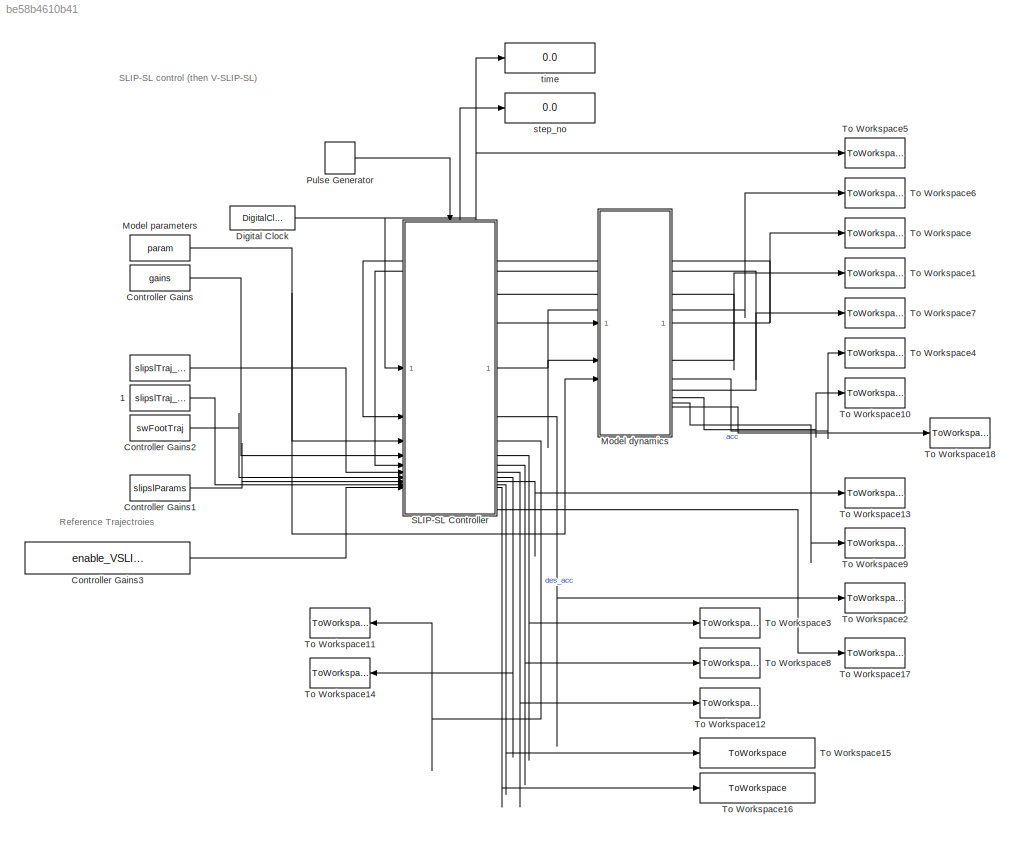
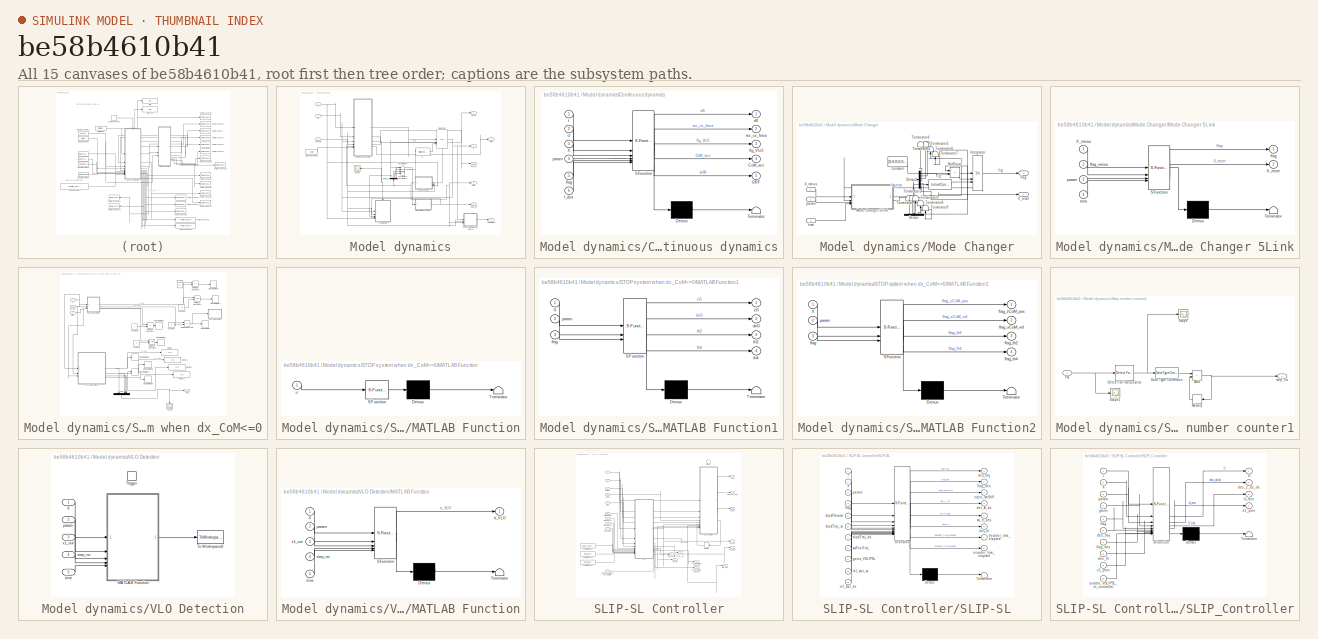
[diagram: thumbnail index - all 15 canvases of the model, root first then tree order]
MODEL slx_be58b4610b41
KIND model
CONFIG AbsTol = 1e-8
CONFIG EnableMultiTasking = off
CONFIG FixedStep = 1e-5
CONFIG MaxStep = 1e-3
CONFIG MinStep = auto
CONFIG RelTol = 1e-12
CONFIG SampleTimeConstraint = Unconstrained
CONFIG SolverName = FixedStepAuto
CONFIG StartTime = 0.0
CONFIG StopTime = Tf
BLOCK [Constant]  
  Value = slipslTraj_ss
BLOCK [Constant]  1
  Value = slipslTraj_ds
BLOCK [Constant] Controller Gains
  Value = gains
BLOCK [Constant] Controller Gains1
  Value = slipslParams
BLOCK [Constant] Controller Gains2
  Value = swFootTraj
BLOCK [Constant] Controller Gains3
  Value = enable_VSLIPSL_in_controller
BLOCK [DigitalClock] Digital Clock
  SampleTime = 1e-4
BLOCK [SubSystem] Model dynamics
BLOCK [Outport] Model dynamics/CoM_acc
  Port = 5
  VectorParamsAs1DForOutWhenUnconnected = off
BLOCK [SubSystem] Model dynamics/Continuous dynamics
  ErrorFcn = Stateflow.Translate.translate
  PermitHierarchicalResolution = ExplicitOnly
  SFBlockType = MATLAB Function
  TreatAsAtomicUnit = on
BLOCK [Demux] Model dynamics/Continuous dynamics/ Demux 
  Outputs = 1
BLOCK [S-Function] Model dynamics/Continuous dynamics/ SFunction 
  EnableBusSupport = on
  FunctionName = sf_sfun
  PortCounts = [6 6]
  SFcnIsStateOwnerBlock = off
  SFunctionDeploymentMode = off
  Tag = Stateflow S-Function 2
BLOCK [Terminator] Model dynamics/Continuous dynamics/ Terminator 
BLOCK [Outport] Model dynamics/Continuous dynamics/CoM_acc
  Port = 4
BLOCK [Outport] Model dynamics/Continuous dynamics/GRF
  Port = 5
BLOCK [Inport] Model dynamics/Continuous dynamics/U
  Port = 2
BLOCK [Inport] Model dynamics/Continuous dynamics/X
  Port = 3
BLOCK [Outport] Model dynamics/Continuous dynamics/dX
  VectorParamsAs1DForOutWhenUnconnected = off
BLOCK [Inport] Model dynamics/Continuous dynamics/f_dist
  Port = 6
BLOCK [Inport] Model dynamics/Continuous dynamics/flag
  Port = 5
BLOCK [Outport] Model dynamics/Continuous dynamics/flg_VLO
  Port = 3
  VectorParamsAs1DForOutWhenUnconnected = off
BLOCK [Inport] Model dynamics/Continuous dynamics/param
  Port = 4
BLOCK [Outport] Model dynamics/Continuous dynamics/rec_cs_force
  Port = 2
BLOCK [Inport] Model dynamics/Continuous dynamics/t
BLOCK [Demux] Model dynamics/Demux1
  NameLocation = right
  Outputs = 6
BLOCK [Constant] Model dynamics/Disturbance Flag
  Value = f_dist
BLOCK [Outport] Model dynamics/Force
  Port = 3
  VectorParamsAs1DForOutWhenUnconnected = off
BLOCK [Outport] Model dynamics/GRF
  Port = 7
BLOCK [InitialCondition] Model dynamics/IC
  Value = Initial_state
BLOCK [Integrator] Model dynamics/Integrator
  ExternalReset = falling
  InitialConditionSource = external
  NameLocation = top
  ShowStatePort = on
BLOCK [SubSystem] Model dynamics/Mode Changer
  NameLocation = top
BLOCK [Constant] Model dynamics/Mode Changer/Constant
  Value = [0;0;0;0;0;0]
BLOCK [Demux] Model dynamics/Mode Changer/Demux
  NameLocation = right
  Outputs = 6
BLOCK [Demux] Model dynamics/Mode Changer/Demux1
  Outputs = 6
BLOCK [InitialCondition] Model dynamics/Mode Changer/IC
  Value = init_flag
BLOCK [Integrator] Model dynamics/Mode Changer/Integrator
  ExternalReset = rising
  InitialConditionSource = external
  NameLocation = top
  ShowStatePort = on
BLOCK [SubSystem] Model dynamics/Mode Changer/Mode Changer 5Link
  ErrorFcn = Stateflow.Translate.translate
  PermitHierarchicalResolution = ExplicitOnly
  SFBlockType = MATLAB Function
  TreatAsAtomicUnit = on
BLOCK [Demux] Model dynamics/Mode Changer/Mode Changer 5Link/ Demux 
  Outputs = 1
BLOCK [S-Function] Model dynamics/Mode Changer/Mode Changer 5Link/ SFunction 
  EnableBusSupport = on
  FunctionName = sf_sfun
  PortCounts = [4 3]
  SFcnIsStateOwnerBlock = off
  SFunctionDeploymentMode = off
  Tag = Stateflow S-Function 6
BLOCK [Terminator] Model dynamics/Mode Changer/Mode Changer 5Link/ Terminator 
BLOCK [Inport] Model dynamics/Mode Changer/Mode Changer 5Link/X_minus
BLOCK [Outport] Model dynamics/Mode Changer/Mode Changer 5Link/X_reset
  Port = 2
  VectorParamsAs1DForOutWhenUnconnected = off
BLOCK [Outport] Model dynamics/Mode Changer/Mode Changer 5Link/flag
  VectorParamsAs1DForOutWhenUnconnected = off
BLOCK [Inport] Model dynamics/Mode Changer/Mode Changer 5Link/flag_minus
  Port = 2
BLOCK [Inport] Model dynamics/Mode Changer/Mode Changer 5Link/param
  Port = 3
BLOCK [Inport] Model dynamics/Mode Changer/Mode Changer 5Link/time
  Port = 4
BLOCK [RelationalOperator] Model dynamics/Mode Changer/NotEqual
  InputSameDT = off
  Operator = ~=
  OutDataTypeStr = boolean
  RndMeth = Simplest
BLOCK [Terminator] Model dynamics/Mode Changer/Terminator
  NameLocation = right
BLOCK [Terminator] Model dynamics/Mode Changer/Terminator1
  NameLocation = right
BLOCK [Terminator] Model dynamics/Mode Changer/Terminator2
  NameLocation = right
BLOCK [Terminator] Model dynamics/Mode Changer/Terminator3
  NameLocation = right
BLOCK [Terminator] Model dynamics/Mode Changer/Terminator4
  NameLocation = right
BLOCK [Terminator] Model dynamics/Mode Changer/Terminator5
  NameLocation = right
BLOCK [Terminator] Model dynamics/Mode Changer/Terminator6
  NameLocation = right
BLOCK [Terminator] Model dynamics/Mode Changer/Terminator7
  NameLocation = right
BLOCK [Terminator] Model dynamics/Mode Changer/Terminator8
  NameLocation = right
BLOCK [Terminator] Model dynamics/Mode Changer/Terminator9
  NameLocation = right
BLOCK [Inport] Model dynamics/Mode Changer/X_minus
BLOCK [Outport] Model dynamics/Mode Changer/X_reset
  Port = 2
  VectorParamsAs1DForOutWhenUnconnected = off
BLOCK [Outport] Model dynamics/Mode Changer/flag
  VectorParamsAs1DForOutWhenUnconnected = off
BLOCK [Inport] Model dynamics/Mode Changer/param 
  Port = 2
BLOCK [Inport] Model dynamics/Mode Changer/time
  Port = 3
BLOCK [SubSystem] Model dynamics/STOP system when dx_CoM<=0
BLOCK [Constant] Model dynamics/STOP system when dx_CoM<=0/Constant
  Commented = on
  Value = 0.3
BLOCK [Constant] Model dynamics/STOP system when dx_CoM<=0/Constant1
  Commented = on
  Value = 1.5
BLOCK [Constant] Model dynamics/STOP system when dx_CoM<=0/Constant2
  Commented = on
  Value = 0.7
BLOCK [Constant] Model dynamics/STOP system when dx_CoM<=0/Constant3
  Commented = on
  Value = 0
BLOCK [Constant] Model dynamics/STOP system when dx_CoM<=0/Constant4
  Commented = on
  Value = 0
BLOCK [Display] Model dynamics/STOP system when dx_CoM<=0/Display
  Decimation = 1
BLOCK [Display] Model dynamics/STOP system when dx_CoM<=0/Display1
  Decimation = 1
BLOCK [Display] Model dynamics/STOP system when dx_CoM<=0/Display2
  Decimation = 1
BLOCK [Display] Model dynamics/STOP system when dx_CoM<=0/Display3
  Decimation = 1
BLOCK [SubSystem] Model dynamics/STOP system when dx_CoM<=0/MATLAB Function
  Commented = on
  ErrorFcn = Stateflow.Translate.translate
  PermitHierarchicalResolution = ExplicitOnly
  SFBlockType = MATLAB Function
  TreatAsAtomicUnit = on
BLOCK [Demux] Model dynamics/STOP system when dx_CoM<=0/MATLAB Function/ Demux 
  Outputs = 1
BLOCK [S-Function] Model dynamics/STOP system when dx_CoM<=0/MATLAB Function/ SFunction 
  EnableBusSupport = on
  FunctionName = sf_sfun
  PortCounts = [1 1]
  SFcnIsStateOwnerBlock = off
  SFunctionDeploymentMode = off
  Tag = Stateflow S-Function 1
BLOCK [Terminator] Model dynamics/STOP system when dx_CoM<=0/MATLAB Function/ Terminator 
BLOCK [Inport] Model dynamics/STOP system when dx_CoM<=0/MATLAB Function/u
BLOCK [SubSystem] Model dynamics/STOP system when dx_CoM<=0/MATLAB Function1
  Commented = on
  ErrorFcn = Stateflow.Translate.translate
  PermitHierarchicalResolution = ExplicitOnly
  SFBlockType = MATLAB Function
  TreatAsAtomicUnit = on
BLOCK [Demux] Model dynamics/STOP system when dx_CoM<=0/MATLAB Function1/ Demux 
  Outputs = 1
BLOCK [S-Function] Model dynamics/STOP system when dx_CoM<=0/MATLAB Function1/ SFunction 
  EnableBusSupport = on
  FunctionName = sf_sfun
  PortCounts = [3 5]
  SFcnIsStateOwnerBlock = off
  SFunctionDeploymentMode = off
  Tag = Stateflow S-Function 3
BLOCK [Terminator] Model dynamics/STOP system when dx_CoM<=0/MATLAB Function1/ Terminator 
BLOCK [Inport] Model dynamics/STOP system when dx_CoM<=0/MATLAB Function1/X
BLOCK [Outport] Model dynamics/STOP system when dx_CoM<=0/MATLAB Function1/dxG
  Port = 2
BLOCK [Inport] Model dynamics/STOP system when dx_CoM<=0/MATLAB Function1/flag
  Port = 3
BLOCK [Inport] Model dynamics/STOP system when dx_CoM<=0/MATLAB Function1/param
  Port = 2
BLOCK [Outport] Model dynamics/STOP system when dx_CoM<=0/MATLAB Function1/th2
  Port = 3
BLOCK [Outport] Model dynamics/STOP system when dx_CoM<=0/MATLAB Function1/th4
  Port = 4
BLOCK [Outport] Model dynamics/STOP system when dx_CoM<=0/MATLAB Function1/zG
BLOCK [SubSystem] Model dynamics/STOP system when dx_CoM<=0/MATLAB Function2
  ErrorFcn = Stateflow.Translate.translate
  PermitHierarchicalResolution = ExplicitOnly
  SFBlockType = MATLAB Function
  TreatAsAtomicUnit = on
BLOCK [Demux] Model dynamics/STOP system when dx_CoM<=0/MATLAB Function2/ Demux 
  Outputs = 1
BLOCK [S-Function] Model dynamics/STOP system when dx_CoM<=0/MATLAB Function2/ SFunction 
  EnableBusSupport = on
  FunctionName = sf_sfun
  PortCounts = [3 5]
  SFcnIsStateOwnerBlock = off
  SFunctionDeploymentMode = off
  Tag = Stateflow S-Function 7
BLOCK [Terminator] Model dynamics/STOP system when dx_CoM<=0/MATLAB Function2/ Terminator 
BLOCK [Inport] Model dynamics/STOP system when dx_CoM<=0/MATLAB Function2/X
BLOCK [Inport] Model dynamics/STOP system when dx_CoM<=0/MATLAB Function2/flag
  Port = 3
BLOCK [Outport] Model dynamics/STOP system when dx_CoM<=0/MATLAB Function2/flag_th2
  Port = 3
BLOCK [Outport] Model dynamics/STOP system when dx_CoM<=0/MATLAB Function2/flag_th4
  Port = 4
BLOCK [Outport] Model dynamics/STOP system when dx_CoM<=0/MATLAB Function2/flag_xCoM_vel
  Port = 2
BLOCK [Outport] Model dynamics/STOP system when dx_CoM<=0/MATLAB Function2/flag_zCoM_pos
BLOCK [Inport] Model dynamics/STOP system when dx_CoM<=0/MATLAB Function2/param
  Port = 2
BLOCK [Mux] Model dynamics/STOP system when dx_CoM<=0/Mux
  DisplayOption = bar
  NameLocation = left
BLOCK [Outport] Model dynamics/STOP system when dx_CoM<=0/Out1
BLOCK [RelationalOperator] Model dynamics/STOP system when dx_CoM<=0/Relational Operator
  Commented = on
  InputSameDT = off
  Operator = <=
  OutDataTypeStr = boolean
  RndMeth = Simplest
BLOCK [RelationalOperator] Model dynamics/STOP system when dx_CoM<=0/Relational Operator1
  Commented = on
  InputSameDT = off
  OutDataTypeStr = boolean
  RndMeth = Simplest
BLOCK [RelationalOperator] Model dynamics/STOP system when dx_CoM<=0/Relational Operator2
  Commented = on
  InputSameDT = off
  Operator = <=
  OutDataTypeStr = boolean
  RndMeth = Simplest
BLOCK [RelationalOperator] Model dynamics/STOP system when dx_CoM<=0/Relational Operator3
  Commented = on
  InputSameDT = off
  Operator = <=
  OutDataTypeStr = boolean
  RndMeth = Simplest
BLOCK [RelationalOperator] Model dynamics/STOP system when dx_CoM<=0/Relational Operator4
  Commented = on
  InputSameDT = off
  OutDataTypeStr = boolean
  RndMeth = Simplest
BLOCK [Scope] Model dynamics/STOP system when dx_CoM<=0/Scope
  Floating = off
  NameLocation = left
  NumInputPorts = 1
  ScopeSpecificationString = Simulink.scopes.TimeScopeBlockCfg('CurrentConfiguration', extmgr.ConfigurationSet(extmgr.Configuration('Core','General UI',true),extmgr.Configuration('Core','Source UI',true),extmgr.Configuration('Sources','WiredSimulink',true,'DataLoggingVariableName','ScopeData1'),extmgr.Configuration('Visuals','Time Domain',true,'SerializedDisplays',{struct('MinYLimReal','-0.125','MaxYLimReal','1.125','YLabelRe...<+1417ch>
BLOCK [Stop] Model dynamics/STOP system when dx_CoM<=0/Stop Simulation
  Commented = on
BLOCK [Stop] Model dynamics/STOP system when dx_CoM<=0/Stop Simulation1
  Commented = on
BLOCK [Stop] Model dynamics/STOP system when dx_CoM<=0/Stop Simulation2
  Commented = on
BLOCK [Stop] Model dynamics/STOP system when dx_CoM<=0/Stop Simulation3
  Commented = on
BLOCK [Stop] Model dynamics/STOP system when dx_CoM<=0/Stop Simulation4
  Commented = on
BLOCK [Stop] Model dynamics/STOP system when dx_CoM<=0/Stop Simulation5
BLOCK [Stop] Model dynamics/STOP system when dx_CoM<=0/Stop Simulation6
BLOCK [Stop] Model dynamics/STOP system when dx_CoM<=0/Stop Simulation7
BLOCK [Stop] Model dynamics/STOP system when dx_CoM<=0/Stop Simulation8
BLOCK [Inport] Model dynamics/STOP system when dx_CoM<=0/X
BLOCK [Inport] Model dynamics/STOP system when dx_CoM<=0/flag
  Port = 3
BLOCK [Inport] Model dynamics/STOP system when dx_CoM<=0/param
  Port = 2
BLOCK [Scope] Model dynamics/Scope
  Floating = off
  NameLocation = top
  NumInputPorts = 1
  ScopeSpecificationString = Simulink.scopes.TimeScopeBlockCfg('CurrentConfiguration', extmgr.ConfigurationSet(extmgr.Configuration('Core','General UI',true),extmgr.Configuration('Core','Source UI',true),extmgr.Configuration('Sources','WiredSimulink',true,'DataLoggingVariableName','ScopeData1'),extmgr.Configuration('Visuals','Time Domain',true,'SerializedDisplays',{struct('MinYLimReal','-0.125','MaxYLimReal','1.125','YLabelRe...<+1374ch>
BLOCK [SubSystem] Model dynamics/Step number counter1
BLOCK [Sum] Model dynamics/Step number counter1/Add
  IconShape = rectangular
BLOCK [DataTypeConversion] Model dynamics/Step number counter1/Data Type Conversion
  OutDataTypeStr = double
  RndMeth = Floor
  SaturateOnIntegerOverflow = off
BLOCK [Reference] Model dynamics/Step number counter1/Detect Fall Nonpositive  REF=simulink/Logic and Bit
Operations/Detect Fall
Nonpositive
  SourceBlock = simulink/Logic and Bit\nOperations/Detect Fall\nNonpositive
  SourceType = Detect Fall Nonpositive
BLOCK [Memory] Model dynamics/Step number counter1/Memory
  InheritSampleTime = on
  NameLocation = top
BLOCK [Scope] Model dynamics/Step number counter1/Scope
  Floating = off
  NumInputPorts = 1
  ScopeSpecificationString = Simulink.scopes.TimeScopeBlockCfg('CurrentConfiguration', extmgr.ConfigurationSet(extmgr.Configuration('Core','General UI',true),extmgr.Configuration('Core','Source UI',true),extmgr.Configuration('Sources','WiredSimulink',true),extmgr.Configuration('Visuals','Time Domain',true,'SerializedDisplays',{struct('MinYLimReal','-0.02721','MaxYLimReal','1.01397','YLabelReal','','MinYLimMag','0.00000','MaxY...<+1417ch>
BLOCK [Scope] Model dynamics/Step number counter1/Scope1
  Floating = off
  NumInputPorts = 1
  ScopeSpecificationString = Simulink.scopes.TimeScopeBlockCfg('CurrentConfiguration', extmgr.ConfigurationSet(extmgr.Configuration('Core','General UI',true),extmgr.Configuration('Core','Source UI',true),extmgr.Configuration('Sources','WiredSimulink',true,'DataLoggingVariableName','ScopeData1'),extmgr.Configuration('Visuals','Time Domain',true,'SerializedDisplays',{struct('MinYLimReal','-0.125','MaxYLimReal','1.125','YLabelRe...<+1422ch>
BLOCK [Inport] Model dynamics/Step number counter1/flg
  SampleTime = sample_time
BLOCK [Outport] Model dynamics/Step number counter1/step_no
  VectorParamsAs1DForOutWhenUnconnected = off
BLOCK [Terminator] Model dynamics/Terminator1
BLOCK [Terminator] Model dynamics/Terminator2
BLOCK [Terminator] Model dynamics/Terminator3
BLOCK [Terminator] Model dynamics/Terminator4
BLOCK [Inport] Model dynamics/U
  Port = 2
BLOCK [SubSystem] Model dynamics/VLO Detection
  TreatAsAtomicUnit = on
BLOCK [SubSystem] Model dynamics/VLO Detection/MATLAB Function
  ErrorFcn = Stateflow.Translate.translate
  PermitHierarchicalResolution = ExplicitOnly
  SFBlockType = MATLAB Function
  TreatAsAtomicUnit = on
BLOCK [Demux] Model dynamics/VLO Detection/MATLAB Function/ Demux 
  Outputs = 1
BLOCK [S-Function] Model dynamics/VLO Detection/MATLAB Function/ SFunction 
  EnableBusSupport = on
  FunctionName = sf_sfun
  PortCounts = [5 2]
  SFcnIsStateOwnerBlock = off
  SFunctionDeploymentMode = off
  Tag = Stateflow S-Function 5
BLOCK [Terminator] Model dynamics/VLO Detection/MATLAB Function/ Terminator 
BLOCK [Inport] Model dynamics/VLO Detection/MATLAB Function/X
BLOCK [Inport] Model dynamics/VLO Detection/MATLAB Function/param
  Port = 2
BLOCK [Outport] Model dynamics/VLO Detection/MATLAB Function/rt_VLO
  VectorParamsAs1DForOutWhenUnconnected = off
BLOCK [Inport] Model dynamics/VLO Detection/MATLAB Function/step_no
  Port = 4
BLOCK [Inport] Model dynamics/VLO Detection/MATLAB Function/time
  Port = 5
BLOCK [Inport] Model dynamics/VLO Detection/MATLAB Function/x1_out
  Port = 3
BLOCK [ToWorkspace] Model dynamics/VLO Detection/To Workspace8
  FixptAsFi = on
  MaxDataPoints = inf
  SampleTime = -1
  VariableName = rt_VLO
BLOCK [TriggerPort] Model dynamics/VLO Detection/Trigger
  StatesWhenEnabling = held
  VariantControl = Variant
BLOCK [Inport] Model dynamics/VLO Detection/X
BLOCK [Inport] Model dynamics/VLO Detection/param
  Port = 2
BLOCK [Inport] Model dynamics/VLO Detection/step_no
  Port = 4
BLOCK [Inport] Model dynamics/VLO Detection/time
  Port = 5
BLOCK [Inport] Model dynamics/VLO Detection/x1_out
  Port = 3
BLOCK [Outport] Model dynamics/X
  VectorParamsAs1DForOutWhenUnconnected = off
BLOCK [Outport] Model dynamics/flag
  Port = 4
BLOCK [Inport] Model dynamics/params
  Port = 3
BLOCK [Outport] Model dynamics/sim stop flags
  Port = 6
BLOCK [Outport] Model dynamics/step_no
  Port = 2
  VectorParamsAs1DForOutWhenUnconnected = off
BLOCK [Inport] Model dynamics/t
BLOCK [Constant] Model parameters
  NameLocation = top
  OutDataTypeStr = double
  Value = param
BLOCK [DiscretePulseGenerator] Pulse Generator
  Period = sample_time
  PulseType = Time based
  PulseWidth = 5
BLOCK [SubSystem] SLIP-SL Controller
  TreatAsAtomicUnit = on
BLOCK [Outport] SLIP-SL Controller/CoM_acc_des
  Port = 3
  VectorParamsAs1DForOutWhenUnconnected = off
BLOCK [Constant] SLIP-SL Controller/Controller Gains1
  Value = gains_VSLIPSL
BLOCK [Constant] SLIP-SL Controller/Controller Gains2
  Value = ref_star_ss
BLOCK [Constant] SLIP-SL Controller/Controller Gains3
  Value = ref_star_ds
BLOCK [Memory] SLIP-SL Controller/Memory
  InheritSampleTime = on
  InitialCondition = [0, 0]
  NameLocation = top
BLOCK [Outport] SLIP-SL Controller/Out1
  VectorParamsAs1DForOutWhenUnconnected = off
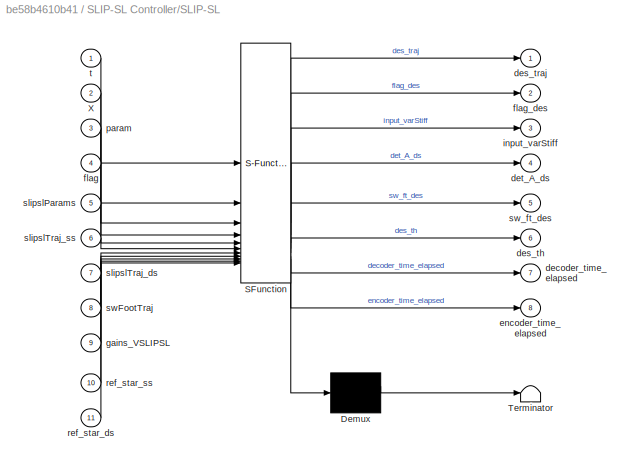
BLOCK [SubSystem] SLIP-SL Controller/SLIP-SL
  ErrorFcn = Stateflow.Translate.translate
  PermitHierarchicalResolution = ExplicitOnly
  SFBlockType = MATLAB Function
  TreatAsAtomicUnit = on
BLOCK [Demux] SLIP-SL Controller/SLIP-SL/ Demux 
  Outputs = 1
BLOCK [S-Function] SLIP-SL Controller/SLIP-SL/ SFunction 
  EnableBusSupport = on
  FunctionName = sf_sfun
  PortCounts = [11 9]
  SFcnIsStateOwnerBlock = off
  SFunctionDeploymentMode = off
  Tag = Stateflow S-Function 8
BLOCK [Terminator] SLIP-SL Controller/SLIP-SL/ Terminator 
BLOCK [Inport] SLIP-SL Controller/SLIP-SL/X
  Port = 2
BLOCK [Outport] SLIP-SL Controller/SLIP-SL/decoder_time_elapsed
  Port = 7
BLOCK [Outport] SLIP-SL Controller/SLIP-SL/des_th
  Port = 6
BLOCK [Outport] SLIP-SL Controller/SLIP-SL/des_traj
BLOCK [Outport] SLIP-SL Controller/SLIP-SL/det_A_ds
  Port = 4
BLOCK [Outport] SLIP-SL Controller/SLIP-SL/encoder_time_elapsed
  Port = 8
BLOCK [Inport] SLIP-SL Controller/SLIP-SL/flag
  Port = 4
BLOCK [Outport] SLIP-SL Controller/SLIP-SL/flag_des
  Port = 2
BLOCK [Inport] SLIP-SL Controller/SLIP-SL/gains_VSLIPSL
  Port = 9
BLOCK [Outport] SLIP-SL Controller/SLIP-SL/input_varStiff
  Port = 3
BLOCK [Inport] SLIP-SL Controller/SLIP-SL/param
  Port = 3
BLOCK [Inport] SLIP-SL Controller/SLIP-SL/ref_star_ds
  Port = 11
BLOCK [Inport] SLIP-SL Controller/SLIP-SL/ref_star_ss
  Port = 10
BLOCK [Inport] SLIP-SL Controller/SLIP-SL/slipslParams
  Port = 5
BLOCK [Inport] SLIP-SL Controller/SLIP-SL/slipslTraj_ds
  Port = 7
BLOCK [Inport] SLIP-SL Controller/SLIP-SL/slipslTraj_ss
  Port = 6
BLOCK [Inport] SLIP-SL Controller/SLIP-SL/swFootTraj
  Port = 8
BLOCK [Outport] SLIP-SL Controller/SLIP-SL/sw_ft_des
  Port = 5
BLOCK [Inport] SLIP-SL Controller/SLIP-SL/t
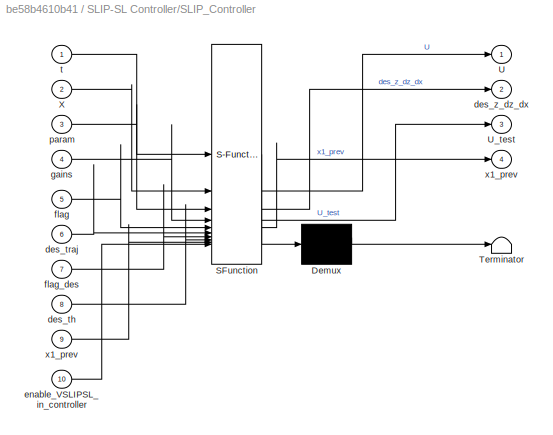
BLOCK [SubSystem] SLIP-SL Controller/SLIP_Controller
  ErrorFcn = Stateflow.Translate.translate
  PermitHierarchicalResolution = ExplicitOnly
  SFBlockType = MATLAB Function
  TreatAsAtomicUnit = on
BLOCK [Demux] SLIP-SL Controller/SLIP_Controller/ Demux 
  Outputs = 1
BLOCK [S-Function] SLIP-SL Controller/SLIP_Controller/ SFunction 
  EnableBusSupport = on
  FunctionName = sf_sfun
  PortCounts = [10 5]
  SFcnIsStateOwnerBlock = off
  SFunctionDeploymentMode = off
  Tag = Stateflow S-Function 4
BLOCK [Terminator] SLIP-SL Controller/SLIP_Controller/ Terminator 
BLOCK [Outport] SLIP-SL Controller/SLIP_Controller/U
  VectorParamsAs1DForOutWhenUnconnected = off
BLOCK [Outport] SLIP-SL Controller/SLIP_Controller/U_test
  Port = 3
BLOCK [Inport] SLIP-SL Controller/SLIP_Controller/X
  Port = 2
BLOCK [Inport] SLIP-SL Controller/SLIP_Controller/des_th
  Port = 8
BLOCK [Inport] SLIP-SL Controller/SLIP_Controller/des_traj
  Port = 6
BLOCK [Outport] SLIP-SL Controller/SLIP_Controller/des_z_dz_dx
  Port = 2
BLOCK [Inport] SLIP-SL Controller/SLIP_Controller/enable_VSLIPSL_in_controller
  Port = 10
BLOCK [Inport] SLIP-SL Controller/SLIP_Controller/flag
  Port = 5
BLOCK [Inport] SLIP-SL Controller/SLIP_Controller/flag_des
  Port = 7
BLOCK [Inport] SLIP-SL Controller/SLIP_Controller/gains
  Port = 4
BLOCK [Inport] SLIP-SL Controller/SLIP_Controller/param
  Port = 3
BLOCK [Inport] SLIP-SL Controller/SLIP_Controller/t
BLOCK [Outport] SLIP-SL Controller/SLIP_Controller/x1_prev
  Port = 4
  VectorParamsAs1DForOutWhenUnconnected = off
BLOCK [Inport] SLIP-SL Controller/SLIP_Controller/x1_prev 
  Port = 9
BLOCK [TriggerPort] SLIP-SL Controller/Trigger
  PortDimensions = 1
  StatesWhenEnabling = held
  VariantControl = Variant
BLOCK [Outport] SLIP-SL Controller/U_test
  Port = 8
  VectorParamsAs1DForOutWhenUnconnected = off
BLOCK [Inport] SLIP-SL Controller/X
  Port = 2
BLOCK [Outport] SLIP-SL Controller/decoder_time_elapsed
  Port = 9
  VectorParamsAs1DForOutWhenUnconnected = off
BLOCK [Outport] SLIP-SL Controller/des_th
  Port = 7
  VectorParamsAs1DForOutWhenUnconnected = off
BLOCK [Outport] SLIP-SL Controller/des_traj
  Port = 4
  VectorParamsAs1DForOutWhenUnconnected = off
BLOCK [Outport] SLIP-SL Controller/det_A_ds
  Port = 6
  VectorParamsAs1DForOutWhenUnconnected = off
BLOCK [Inport] SLIP-SL Controller/enable_VSLIPSL_in_controller
  Port = 10
BLOCK [Outport] SLIP-SL Controller/encoder_time_elapsed
  Port = 10
  VectorParamsAs1DForOutWhenUnconnected = off
BLOCK [Inport] SLIP-SL Controller/flag
  Port = 5
BLOCK [Outport] SLIP-SL Controller/flag_des
  Port = 11
  VectorParamsAs1DForOutWhenUnconnected = off
BLOCK [Inport] SLIP-SL Controller/gains
  Port = 4
BLOCK [Outport] SLIP-SL Controller/input_varStiff
  Port = 5
  VectorParamsAs1DForOutWhenUnconnected = off
BLOCK [Inport] SLIP-SL Controller/param
  Port = 3
BLOCK [Inport] SLIP-SL Controller/slipslParams
  Port = 8
BLOCK [Inport] SLIP-SL Controller/slipslTraj_ds
  Port = 9
BLOCK [Inport] SLIP-SL Controller/slipslTraj_ss
  Port = 6
BLOCK [Inport] SLIP-SL Controller/swFootTraj
  Port = 7
BLOCK [Outport] SLIP-SL Controller/sw_ft_des
  Port = 2
  VectorParamsAs1DForOutWhenUnconnected = off
BLOCK [Inport] SLIP-SL Controller/t
BLOCK [ToWorkspace] To Workspace
  FixptAsFi = on
  MaxDataPoints = inf
  SampleTime = sample_time
  VariableName = simout
BLOCK [ToWorkspace] To Workspace1
  FixptAsFi = on
  MaxDataPoints = inf
  SampleTime = sample_time
  VariableName = step_no
BLOCK [ToWorkspace] To Workspace10
  FixptAsFi = on
  MaxDataPoints = inf
  SampleTime = sample_time
  VariableName = CoM_acc
BLOCK [ToWorkspace] To Workspace11
  FixptAsFi = on
  MaxDataPoints = inf
  NameLocation = top
  SampleTime = sample_time
  VariableName = des_z_dz_dx
BLOCK [ToWorkspace] To Workspace12
  FixptAsFi = on
  MaxDataPoints = inf
  SampleTime = sample_time
  VariableName = det_A_ds
BLOCK [ToWorkspace] To Workspace13
  FixptAsFi = on
  MaxDataPoints = inf
  SampleTime = sample_time
  VariableName = U_test
BLOCK [ToWorkspace] To Workspace14
  FixptAsFi = on
  MaxDataPoints = inf
  NameLocation = top
  SampleTime = sample_time
  VariableName = des_th
BLOCK [ToWorkspace] To Workspace15
  FixptAsFi = on
  MaxDataPoints = inf
  SampleTime = sample_time
  VariableName = decoder_time_elapsed
BLOCK [ToWorkspace] To Workspace16
  FixptAsFi = on
  MaxDataPoints = inf
  SampleTime = sample_time
  VariableName = encoder_time_elapsed
BLOCK [ToWorkspace] To Workspace17
  FixptAsFi = on
  MaxDataPoints = inf
  SampleTime = sample_time
  VariableName = flag_des
BLOCK [ToWorkspace] To Workspace18
  FixptAsFi = on
  MaxDataPoints = inf
  SampleTime = sample_time
  VariableName = GRF_simulink
BLOCK [ToWorkspace] To Workspace2
  FixptAsFi = on
  MaxDataPoints = inf
  SampleTime = sample_time
  VariableName = sw_ft_des
BLOCK [ToWorkspace] To Workspace3
  FixptAsFi = on
  MaxDataPoints = inf
  SampleTime = sample_time
  VariableName = des_traj
BLOCK [ToWorkspace] To Workspace4
  FixptAsFi = on
  MaxDataPoints = inf
  SampleTime = sample_time
  VariableName = force
BLOCK [ToWorkspace] To Workspace5
  FixptAsFi = on
  MaxDataPoints = inf
  SampleTime = sample_time
  VariableName = time
BLOCK [ToWorkspace] To Workspace6
  FixptAsFi = on
  MaxDataPoints = inf
  SampleTime = sample_time
  VariableName = inputTorque
BLOCK [ToWorkspace] To Workspace7
  FixptAsFi = on
  MaxDataPoints = inf
  SampleTime = sample_time
  VariableName = flag
BLOCK [ToWorkspace] To Workspace8
  FixptAsFi = on
  MaxDataPoints = inf
  SampleTime = sample_time
  VariableName = input_varStiff
BLOCK [ToWorkspace] To Workspace9
  FixptAsFi = on
  MaxDataPoints = inf
  SampleTime = sample_time
  VariableName = flag_sim_stop
BLOCK [Display] step_no
  Decimation = 1
BLOCK [Display] time
  Decimation = 1
ANNOTATION (root): Reference Trajectroies
ANNOTATION (root): SLIP-SL control (then V-SLIP-SL)
LINE  1:1 -> SLIP-SL Controller:9
LINE  :1 -> SLIP-SL Controller:6
LINE Controller Gains1:1 -> SLIP-SL Controller:8
LINE Controller Gains2:1 -> SLIP-SL Controller:7
LINE Controller Gains3:1 -> SLIP-SL Controller:10
LINE Controller Gains:1 -> SLIP-SL Controller:4
NET Digital Clock:1 -> Model dynamics:1, SLIP-SL Controller:1, To Workspace5:1, time:1
LINE Model dynamics/Continuous dynamics:1 -> Model dynamics/Integrator:1
LINE Model dynamics/Continuous dynamics:2 -> Model dynamics/Force:1
NET Model dynamics/Continuous dynamics:3 -> Model dynamics/Scope:1, Model dynamics/VLO Detection:trigger
LINE Model dynamics/Continuous dynamics:4 -> Model dynamics/CoM_acc:1
LINE Model dynamics/Continuous dynamics:5 -> Model dynamics/GRF:1
NET Model dynamics/Demux1:1 -> Model dynamics/Integrator:2, Model dynamics/Step number counter1:1
LINE Model dynamics/Demux1:2 -> Model dynamics/VLO Detection:3
LINE Model dynamics/Demux1:3 -> Model dynamics/Terminator1:1
LINE Model dynamics/Demux1:4 -> Model dynamics/Terminator2:1
LINE Model dynamics/Demux1:5 -> Model dynamics/Terminator3:1
LINE Model dynamics/Demux1:6 -> Model dynamics/Terminator4:1
LINE Model dynamics/Disturbance Flag:1 -> Model dynamics/Continuous dynamics:6
LINE Model dynamics/IC:1 -> Model dynamics/Integrator:3
NET Model dynamics/Integrator:1 -> Model dynamics/Continuous dynamics:3, Model dynamics/STOP system when dx_CoM<=0:1, Model dynamics/VLO Detection:1, Model dynamics/X:1
LINE Model dynamics/Integrator:state -> Model dynamics/Mode Changer:1
LINE Model dynamics/Mode Changer/Constant:1 -> Model dynamics/Mode Changer/Integrator:1
LINE Model dynamics/Mode Changer/Demux1:1 -> Model dynamics/Mode Changer/NotEqual:2
LINE Model dynamics/Mode Changer/Demux1:2 -> Model dynamics/Mode Changer/Terminator2:1
LINE Model dynamics/Mode Changer/Demux1:3 -> Model dynamics/Mode Changer/Terminator3:1
LINE Model dynamics/Mode Changer/Demux1:4 -> Model dynamics/Mode Changer/Terminator4:1
LINE Model dynamics/Mode Changer/Demux1:5 -> Model dynamics/Mode Changer/Terminator6:1
LINE Model dynamics/Mode Changer/Demux1:6 -> Model dynamics/Mode Changer/Terminator7:1
LINE Model dynamics/Mode Changer/Demux:1 -> Model dynamics/Mode Changer/NotEqual:1
LINE Model dynamics/Mode Changer/Demux:2 -> Model dynamics/Mode Changer/Terminator:1
LINE Model dynamics/Mode Changer/Demux:3 -> Model dynamics/Mode Changer/Terminator1:1
LINE Model dynamics/Mode Changer/Demux:4 -> Model dynamics/Mode Changer/Terminator5:1
LINE Model dynamics/Mode Changer/Demux:5 -> Model dynamics/Mode Changer/Terminator8:1
LINE Model dynamics/Mode Changer/Demux:6 -> Model dynamics/Mode Changer/Terminator9:1
LINE Model dynamics/Mode Changer/IC:1 -> Model dynamics/Mode Changer/Integrator:3
LINE Model dynamics/Mode Changer/Integrator:1 -> Model dynamics/Mode Changer/flag:1
NET Model dynamics/Mode Changer/Integrator:state -> Model dynamics/Mode Changer/Demux:1, Model dynamics/Mode Changer/Mode Changer 5Link:2
NET Model dynamics/Mode Changer/Mode Changer 5Link:1 -> Model dynamics/Mode Changer/Demux1:1, Model dynamics/Mode Changer/IC:1
LINE Model dynamics/Mode Changer/Mode Changer 5Link:2 -> Model dynamics/Mode Changer/X_reset:1
LINE Model dynamics/Mode Changer/NotEqual:1 -> Model dynamics/Mode Changer/Integrator:2
LINE Model dynamics/Mode Changer/X_minus:1 -> Model dynamics/Mode Changer/Mode Changer 5Link:1
LINE Model dynamics/Mode Changer/param :1 -> Model dynamics/Mode Changer/Mode Changer 5Link:3
LINE Model dynamics/Mode Changer/time:1 -> Model dynamics/Mode Changer/Mode Changer 5Link:4
NET Model dynamics/Mode Changer:1 -> Model dynamics/Continuous dynamics:5, Model dynamics/Demux1:1, Model dynamics/STOP system when dx_CoM<=0:3, Model dynamics/flag:1
LINE Model dynamics/Mode Changer:2 -> Model dynamics/IC:1
LINE Model dynamics/STOP system when dx_CoM<=0/Constant1:1 -> Model dynamics/STOP system when dx_CoM<=0/Relational Operator1:2
LINE Model dynamics/STOP system when dx_CoM<=0/Constant2:1 -> Model dynamics/STOP system when dx_CoM<=0/Relational Operator2:2
LINE Model dynamics/STOP system when dx_CoM<=0/Constant3:1 -> Model dynamics/STOP system when dx_CoM<=0/Relational Operator3:2
LINE Model dynamics/STOP system when dx_CoM<=0/Constant4:1 -> Model dynamics/STOP system when dx_CoM<=0/Relational Operator4:2
LINE Model dynamics/STOP system when dx_CoM<=0/Constant:1 -> Model dynamics/STOP system when dx_CoM<=0/Relational Operator:2
NET Model dynamics/STOP system when dx_CoM<=0/MATLAB Function1:1 -> Model dynamics/STOP system when dx_CoM<=0/Relational Operator1:1, Model dynamics/STOP system when dx_CoM<=0/Relational Operator2:1
LINE Model dynamics/STOP system when dx_CoM<=0/MATLAB Function1:2 -> Model dynamics/STOP system when dx_CoM<=0/Relational Operator:1
LINE Model dynamics/STOP system when dx_CoM<=0/MATLAB Function1:3 -> Model dynamics/STOP system when dx_CoM<=0/Relational Operator3:1
LINE Model dynamics/STOP system when dx_CoM<=0/MATLAB Function1:4 -> Model dynamics/STOP system when dx_CoM<=0/Relational Operator4:1
NET Model dynamics/STOP system when dx_CoM<=0/MATLAB Function2:1 -> Model dynamics/STOP system when dx_CoM<=0/Display:1, Model dynamics/STOP system when dx_CoM<=0/Mux:1, Model dynamics/STOP system when dx_CoM<=0/Stop Simulation5:1
NET Model dynamics/STOP system when dx_CoM<=0/MATLAB Function2:2 -> Model dynamics/STOP system when dx_CoM<=0/Display1:1, Model dynamics/STOP system when dx_CoM<=0/Mux:2, Model dynamics/STOP system when dx_CoM<=0/Stop Simulation6:1
NET Model dynamics/STOP system when dx_CoM<=0/MATLAB Function2:3 -> Model dynamics/STOP system when dx_CoM<=0/Display2:1, Model dynamics/STOP system when dx_CoM<=0/Mux:3, Model dynamics/STOP system when dx_CoM<=0/Stop Simulation7:1
NET Model dynamics/STOP system when dx_CoM<=0/MATLAB Function2:4 -> Model dynamics/STOP system when dx_CoM<=0/Display3:1, Model dynamics/STOP system when dx_CoM<=0/Mux:4, Model dynamics/STOP system when dx_CoM<=0/Stop Simulation8:1
NET Model dynamics/STOP system when dx_CoM<=0/Mux:1 -> Model dynamics/STOP system when dx_CoM<=0/Out1:1, Model dynamics/STOP system when dx_CoM<=0/Scope:1
LINE Model dynamics/STOP system when dx_CoM<=0/Relational Operator1:1 -> Model dynamics/STOP system when dx_CoM<=0/Stop Simulation1:1
LINE Model dynamics/STOP system when dx_CoM<=0/Relational Operator2:1 -> Model dynamics/STOP system when dx_CoM<=0/Stop Simulation2:1
LINE Model dynamics/STOP system when dx_CoM<=0/Relational Operator3:1 -> Model dynamics/STOP system when dx_CoM<=0/Stop Simulation3:1
LINE Model dynamics/STOP system when dx_CoM<=0/Relational Operator4:1 -> Model dynamics/STOP system when dx_CoM<=0/Stop Simulation4:1
NET Model dynamics/STOP system when dx_CoM<=0/Relational Operator:1 -> Model dynamics/STOP system when dx_CoM<=0/MATLAB Function:1, Model dynamics/STOP system when dx_CoM<=0/Stop Simulation:1
NET Model dynamics/STOP system when dx_CoM<=0/X:1 -> Model dynamics/STOP system when dx_CoM<=0/MATLAB Function1:1, Model dynamics/STOP system when dx_CoM<=0/MATLAB Function2:1
NET Model dynamics/STOP system when dx_CoM<=0/flag:1 -> Model dynamics/STOP system when dx_CoM<=0/MATLAB Function1:3, Model dynamics/STOP system when dx_CoM<=0/MATLAB Function2:3
NET Model dynamics/STOP system when dx_CoM<=0/param:1 -> Model dynamics/STOP system when dx_CoM<=0/MATLAB Function1:2, Model dynamics/STOP system when dx_CoM<=0/MATLAB Function2:2
LINE Model dynamics/STOP system when dx_CoM<=0:1 -> Model dynamics/sim stop flags:1
NET Model dynamics/Step number counter1/Add:1 -> Model dynamics/Step number counter1/Memory:1, Model dynamics/Step number counter1/step_no:1
LINE Model dynamics/Step number counter1/Data Type Conversion:1 -> Model dynamics/Step number counter1/Add:1
NET Model dynamics/Step number counter1/Detect Fall Nonpositive:1 -> Model dynamics/Step number counter1/Data Type Conversion:1, Model dynamics/Step number counter1/Scope:1
LINE Model dynamics/Step number counter1/Memory:1 -> Model dynamics/Step number counter1/Add:2
NET Model dynamics/Step number counter1/flg:1 -> Model dynamics/Step number counter1/Detect Fall Nonpositive:1, Model dynamics/Step number counter1/Scope1:1
NET Model dynamics/Step number counter1:1 -> Model dynamics/VLO Detection:4, Model dynamics/step_no:1
LINE Model dynamics/U:1 -> Model dynamics/Continuous dynamics:2
LINE Model dynamics/VLO Detection/MATLAB Function:1 -> Model dynamics/VLO Detection/To Workspace8:1
LINE Model dynamics/VLO Detection/X:1 -> Model dynamics/VLO Detection/MATLAB Function:1
LINE Model dynamics/VLO Detection/param:1 -> Model dynamics/VLO Detection/MATLAB Function:2
LINE Model dynamics/VLO Detection/step_no:1 -> Model dynamics/VLO Detection/MATLAB Function:4
LINE Model dynamics/VLO Detection/time:1 -> Model dynamics/VLO Detection/MATLAB Function:5
LINE Model dynamics/VLO Detection/x1_out:1 -> Model dynamics/VLO Detection/MATLAB Function:3
NET Model dynamics/params:1 -> Model dynamics/Continuous dynamics:4, Model dynamics/Mode Changer:2, Model dynamics/STOP system when dx_CoM<=0:2, Model dynamics/VLO Detection:2
NET Model dynamics/t:1 -> Model dynamics/Continuous dynamics:1, Model dynamics/Mode Changer:3, Model dynamics/VLO Detection:5
NET Model dynamics:1 -> SLIP-SL Controller:2, To Workspace:1
NET Model dynamics:2 -> To Workspace1:1, step_no:1
LINE Model dynamics:3 -> To Workspace4:1
NET Model dynamics:4 -> SLIP-SL Controller:5, To Workspace7:1
LINE Model dynamics:5 -> To Workspace10:1
LINE Model dynamics:6 -> To Workspace9:1
LINE Model dynamics:7 -> To Workspace18:1
NET Model parameters:1 -> Model dynamics:3, SLIP-SL Controller:3
LINE Pulse Generator:1 -> SLIP-SL Controller:trigger
LINE SLIP-SL Controller/Controller Gains1:1 -> SLIP-SL Controller/SLIP-SL:9
LINE SLIP-SL Controller/Controller Gains2:1 -> SLIP-SL Controller/SLIP-SL:10
LINE SLIP-SL Controller/Controller Gains3:1 -> SLIP-SL Controller/SLIP-SL:11
LINE SLIP-SL Controller/Memory:1 -> SLIP-SL Controller/SLIP_Controller:9
NET SLIP-SL Controller/SLIP-SL:1 -> SLIP-SL Controller/SLIP_Controller:6, SLIP-SL Controller/des_traj:1
NET SLIP-SL Controller/SLIP-SL:2 -> SLIP-SL Controller/SLIP_Controller:7, SLIP-SL Controller/flag_des:1
LINE SLIP-SL Controller/SLIP-SL:3 -> SLIP-SL Controller/input_varStiff:1
LINE SLIP-SL Controller/SLIP-SL:4 -> SLIP-SL Controller/det_A_ds:1
LINE SLIP-SL Controller/SLIP-SL:5 -> SLIP-SL Controller/sw_ft_des:1
NET SLIP-SL Controller/SLIP-SL:6 -> SLIP-SL Controller/SLIP_Controller:8, SLIP-SL Controller/des_th:1
LINE SLIP-SL Controller/SLIP-SL:7 -> SLIP-SL Controller/decoder_time_elapsed:1
LINE SLIP-SL Controller/SLIP-SL:8 -> SLIP-SL Controller/encoder_time_elapsed:1
LINE SLIP-SL Controller/SLIP_Controller:1 -> SLIP-SL Controller/Out1:1
LINE SLIP-SL Controller/SLIP_Controller:2 -> SLIP-SL Controller/CoM_acc_des:1
LINE SLIP-SL Controller/SLIP_Controller:3 -> SLIP-SL Controller/U_test:1
LINE SLIP-SL Controller/SLIP_Controller:4 -> SLIP-SL Controller/Memory:1
NET SLIP-SL Controller/X:1 -> SLIP-SL Controller/SLIP-SL:2, SLIP-SL Controller/SLIP_Controller:2
LINE SLIP-SL Controller/enable_VSLIPSL_in_controller:1 -> SLIP-SL Controller/SLIP_Controller:10
NET SLIP-SL Controller/flag:1 -> SLIP-SL Controller/SLIP-SL:4, SLIP-SL Controller/SLIP_Controller:5
LINE SLIP-SL Controller/gains:1 -> SLIP-SL Controller/SLIP_Controller:4
NET SLIP-SL Controller/param:1 -> SLIP-SL Controller/SLIP-SL:3, SLIP-SL Controller/SLIP_Controller:3
LINE SLIP-SL Controller/slipslParams:1 -> SLIP-SL Controller/SLIP-SL:5
LINE SLIP-SL Controller/slipslTraj_ds:1 -> SLIP-SL Controller/SLIP-SL:7
LINE SLIP-SL Controller/slipslTraj_ss:1 -> SLIP-SL Controller/SLIP-SL:6
LINE SLIP-SL Controller/swFootTraj:1 -> SLIP-SL Controller/SLIP-SL:8
NET SLIP-SL Controller/t:1 -> SLIP-SL Controller/SLIP-SL:1, SLIP-SL Controller/SLIP_Controller:1
NET SLIP-SL Controller:1 -> Model dynamics:2, To Workspace6:1
LINE SLIP-SL Controller:10 -> To Workspace16:1
LINE SLIP-SL Controller:11 -> To Workspace17:1
LINE SLIP-SL Controller:2 -> To Workspace2:1
LINE SLIP-SL Controller:3 -> To Workspace11:1
LINE SLIP-SL Controller:4 -> To Workspace3:1
LINE SLIP-SL Controller:5 -> To Workspace8:1
LINE SLIP-SL Controller:6 -> To Workspace12:1
LINE SLIP-SL Controller:7 -> To Workspace14:1
LINE SLIP-SL Controller:8 -> To Workspace13:1
LINE SLIP-SL Controller:9 -> To Workspace15:1
note: NET lines group one-source signal fan-out (src -> all destinations, sorted); 1:1 wires keep LINE
CHART Model dynamics/VLO Detection/MATLAB Function states=1 transitions=1
  STATE_LABEL 'eML_blk_kernel()'
  STATE_LABEL 'SCRIPT:\nfunction rt_VLO = fcn(X, param, x1_out, step_no, time)\n\nCoM = calculate_com(X, param, x1_out, [0;0;0;0;0]); % calculation the CoM location\n\nz_CoM = CoM(2);\ndx_CoM = CoM(3);\ndz_CoM = CoM(4);\ntheta_P = atan2(dz_CoM, dx_CoM);\nz_P = z_CoM;\n\ntotal_CoM_E = calculate_CoM_energy(X, param); % total energy of CoM @VLO\n% total_E = calculate_total_energy(X, param); % total energy of robot @VLO\n\nrt_VLO...<+45ch>'
CHART Model dynamics/Mode Changer/Mode Changer 5Link states=1 transitions=1
  STATE_LABEL 'eML_blk_kernel()'
  STATE_LABEL 'SCRIPT:\nfunction [flag, X_reset]  = fcn(X_minus, flag_minus, param, time)\n\n%% variables\n\nth1 = X_minus(1);\nth2 = X_minus(2);\nth3 = X_minus(3);\nth4 = X_minus(4);\nth5 = X_minus(5);\n\ndth1 = X_minus(6);\ndth2 = X_minus(7);\ndth3 = X_minus(8);\ndth4 = X_minus(9);\ndth5 = X_minus(10);\n\nq = [th1;th2;th3;th4;th5];\ndq = [dth1;dth2;dth3;dth4;dth5];\n\n%% parameters\n\nm1 = param(1);\nm2 = param(2);\nm3 = m2;\nm4 = m1;...<+3608ch>'
CHART Model dynamics/STOP system when dx_CoM<=0/MATLAB Function2 states=1 transitions=1
  STATE_LABEL 'eML_blk_kernel()'
  STATE_LABEL 'SCRIPT:\nfunction [flag_zCoM_pos, flag_xCoM_vel, flag_th2, flag_th4] = fcn(X,param, flag)\n\n%% variables\nth1 = X(1);\nth2 = X(2);\nth3 = X(3);\nth4 = X(4);\nth5 = X(5);\n\ndth1 = X(6);\ndth2 = X(7);\ndth3 = X(8);\ndth4 = X(9);\ndth5 = X(10);\n\nq = [th1;th2;th3;th4;th5];\ndq = [dth1;dth2;dth3;dth4;dth5];\n\n%% parameters\n\nm1 = param(1);\nm2 = param(2);\nm3 = m2;\nm4 = m1;\nm5 = param(3);\n\nl1 = param(4);\nl2 = param(5);...<+860ch>'
CHART SLIP-SL Controller/SLIP-SL states=1 transitions=1
  STATE_LABEL 'eML_blk_kernel()'
  STATE_LABEL 'SCRIPT:\nfunction [des_traj, flag_des, input_varStiff, det_A_ds, sw_ft_des, des_th, decoder_time_elapsed, encoder_time_elapsed] = fcn(t, X, param, flag, slipslParams, slipslTraj_ss, slipslTraj_ds, swFootTraj, gains_VSLIPSL, ref_star_ss, ref_star_ds)\n\n%% variables (absolute angles)\nth1 = X(1);\nth2 = X(1) + X(2);\nth3 = X(1) + X(2) + X(3);\nth4 = X(1) + X(2) + X(3) + X(4);\nth5 = X(1) + X(2) + X(5);\n\ndt...<+3608ch>'
CHART Model dynamics/STOP system when dx_CoM<=0/MATLAB Function states=1 transitions=1
  STATE_LABEL 'eML_blk_kernel()'
  STATE_LABEL "SCRIPT:\nfunction fcn(u)\nif u ~= 0\n    disp('dx < 0')\nend\n"
CHART Model dynamics/Continuous dynamics states=1 transitions=1
  STATE_LABEL 'eML_blk_kernel()'
  STATE_LABEL 'SCRIPT:\nfunction [dX, rec_cs_force, flg_VLO, CoM_acc, GRF] = fcn(t, U, X, param, flag, f_dist)\n\n%% variables\nth1 = X(1);\nth2 = X(2);\nth3 = X(3);\nth4 = X(4);\nth5 = X(5);\n\ndth1 = X(6);\ndth2 = X(7);\ndth3 = X(8);\ndth4 = X(9);\ndth5 = X(10);\n\nq = [th1;th2;th3;th4;th5];\ndq = [dth1;dth2;dth3;dth4;dth5];\n\n%% parameters\n\nm1 = param(1);\nm2 = param(2);\nm3 = m2;\nm4 = m1;\nm5 = param(3);\n\nl1 = param(4);\nl2 = par...<+3608ch>'
CHART Model dynamics/STOP system when dx_CoM<=0/MATLAB Function1 states=1 transitions=1
  STATE_LABEL 'eML_blk_kernel()'
  STATE_LABEL 'SCRIPT:\nfunction [zG, dxG, th2, th4] = fcn(X,param, flag)\n\n%% variables\nth1 = X(1);\nth2 = X(2);\nth3 = X(3);\nth4 = X(4);\nth5 = X(5);\n\ndth1 = X(6);\ndth2 = X(7);\ndth3 = X(8);\ndth4 = X(9);\ndth5 = X(10);\n\nq = [th1;th2;th3;th4;th5];\ndq = [dth1;dth2;dth3;dth4;dth5];\n\n%% parameters\n\nm1 = param(1);\nm2 = param(2);\nm3 = m2;\nm4 = m1;\nm5 = param(3);\n\nl1 = param(4);\nl2 = param(5);\nl5 = param(6);\nl3 = l2;\nl4 = l...<+502ch>'
CHART SLIP-SL Controller/SLIP_Controller states=1 transitions=1
  STATE_LABEL 'eML_blk_kernel()'
  STATE_LABEL "SCRIPT:\nfunction [U, des_z_dz_dx, U_test, x1_prev] = fcn(t, X, param, gains,  flag, des_traj, flag_des, des_th, x1_prev, enable_VSLIPSL_in_controller)\ncoder.extrinsic('quadprog');\ncoder.extrinsic('sparse')\n\n%% variables (absolute angles)\nth1 = X(1);\nth2 = X(1) + X(2);\nth3 = X(1) + X(2) + X(3);\nth4 = X(1) + X(2) + X(3) + X(4);\nth5 = X(1) + X(2) + X(5);\n\ndth1 = X(6);\ndth2 = X(6) + X(7);\ndth3 = X(6) ...<+3608ch>"
CHART  states=0 transitions=0
CHART  states=0 transitions=0
CHART  states=0 transitions=0
CHART  states=0 transitions=0
CHART  states=0 transitions=0
CHART  states=0 transitions=0
CHART  states=0 transitions=0
CHART  states=0 transitions=0
